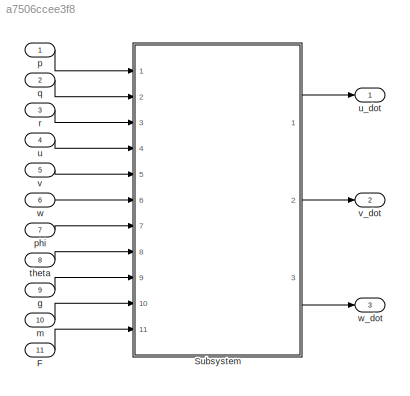
MODEL slx_a7506ccee3f8
KIND model
CONFIG AbsTol = auto
CONFIG EnableMultiTasking = off
CONFIG FixedStep = auto
CONFIG MaxStep = auto
CONFIG MinStep = auto
CONFIG RelTol = 1e-3
CONFIG SampleTimeConstraint = Unconstrained
CONFIG Solver = VariableStepAuto
CONFIG SolverName = VariableStepAuto
CONFIG StartTime = 0.0
CONFIG StopTime = 10.0
BLOCK [Inport] F
  IconDisplay = Port number
  Port = 11
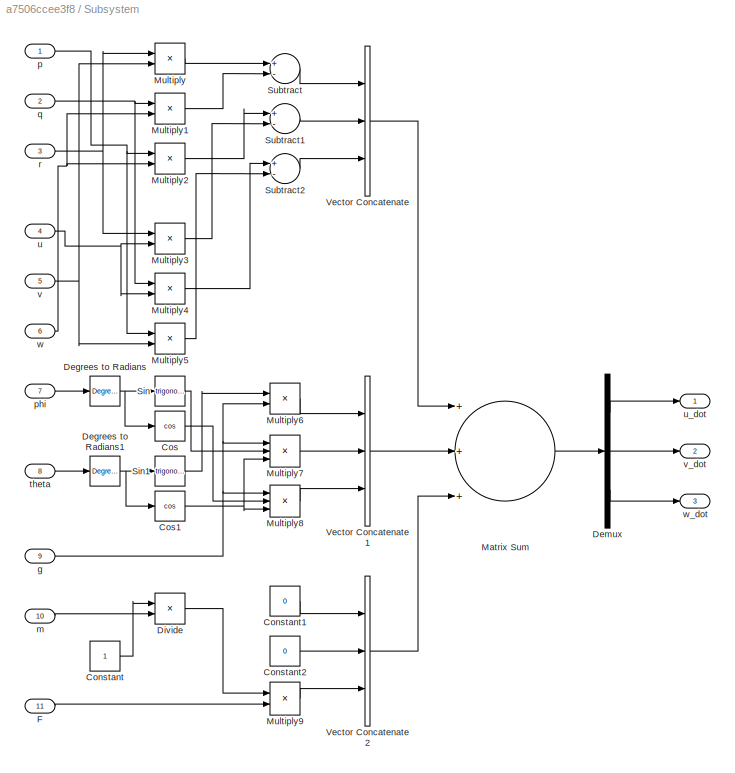
BLOCK [SubSystem] Subsystem
  Ports = [11, 3]
  RequestExecContextInheritance = off
BLOCK [Constant] Subsystem/Constant
BLOCK [Constant] Subsystem/Constant1
  Value = 0
BLOCK [Constant] Subsystem/Constant2
  Value = 0
BLOCK [Trigonometry] Subsystem/Cos
  Operator = cos
  Ports = [1, 1]
BLOCK [Trigonometry] Subsystem/Cos1
  Operator = cos
  Ports = [1, 1]
BLOCK [Reference] Subsystem/Degrees to Radians  REF=simulink_extras/Transformations/Degrees to
Radians
  Ports = [1, 1]
  SourceBlock = simulink_extras/Transformations/Degrees to\nRadians
  SourceProductBaseCode = SL
  SourceProductName = Simulink
  SourceType = DegreesToRadians
BLOCK [Reference] Subsystem/Degrees to Radians1  REF=simulink_extras/Transformations/Degrees to
Radians
  Ports = [1, 1]
  SourceBlock = simulink_extras/Transformations/Degrees to\nRadians
  SourceProductBaseCode = SL
  SourceProductName = Simulink
  SourceType = DegreesToRadians
BLOCK [Demux] Subsystem/Demux
  DisplayOption = bar
  Outputs = 3
  Ports = [1, 3]
BLOCK [Product] Subsystem/Divide
  InputSameDT = off
  Inputs = */
  OutDataTypeStr = Inherit: Inherit via internal rule
  Ports = [2, 1]
  RndMeth = Floor
  SaturateOnIntegerOverflow = off
BLOCK [Inport] Subsystem/F
  IconDisplay = Port number
  Port = 11
BLOCK [Sum] Subsystem/Matrix Sum
  InputSameDT = off
  Inputs = +++
  OutDataTypeStr = Inherit: Inherit via internal rule
  Ports = [3, 1]
  SaturateOnIntegerOverflow = off
BLOCK [Product] Subsystem/Multiply
  InputSameDT = off
  OutDataTypeStr = Inherit: Inherit via internal rule
  Ports = [2, 1]
  RndMeth = Floor
  SaturateOnIntegerOverflow = off
BLOCK [Product] Subsystem/Multiply1
  InputSameDT = off
  OutDataTypeStr = Inherit: Inherit via internal rule
  Ports = [2, 1]
  RndMeth = Floor
  SaturateOnIntegerOverflow = off
BLOCK [Product] Subsystem/Multiply2
  InputSameDT = off
  OutDataTypeStr = Inherit: Inherit via internal rule
  Ports = [2, 1]
  RndMeth = Floor
  SaturateOnIntegerOverflow = off
BLOCK [Product] Subsystem/Multiply3
  InputSameDT = off
  OutDataTypeStr = Inherit: Inherit via internal rule
  Ports = [2, 1]
  RndMeth = Floor
  SaturateOnIntegerOverflow = off
BLOCK [Product] Subsystem/Multiply4
  InputSameDT = off
  OutDataTypeStr = Inherit: Inherit via internal rule
  Ports = [2, 1]
  RndMeth = Floor
  SaturateOnIntegerOverflow = off
BLOCK [Product] Subsystem/Multiply5
  InputSameDT = off
  OutDataTypeStr = Inherit: Inherit via internal rule
  Ports = [2, 1]
  RndMeth = Floor
  SaturateOnIntegerOverflow = off
BLOCK [Product] Subsystem/Multiply6
  InputSameDT = off
  OutDataTypeStr = Inherit: Inherit via internal rule
  Ports = [2, 1]
  RndMeth = Floor
  SaturateOnIntegerOverflow = off
BLOCK [Product] Subsystem/Multiply7
  InputSameDT = off
  Inputs = 3
  OutDataTypeStr = Inherit: Inherit via internal rule
  Ports = [3, 1]
  RndMeth = Floor
  SaturateOnIntegerOverflow = off
BLOCK [Product] Subsystem/Multiply8
  InputSameDT = off
  Inputs = 3
  OutDataTypeStr = Inherit: Inherit via internal rule
  Ports = [3, 1]
  RndMeth = Floor
  SaturateOnIntegerOverflow = off
BLOCK [Product] Subsystem/Multiply9
  InputSameDT = off
  OutDataTypeStr = Inherit: Inherit via internal rule
  Ports = [2, 1]
  RndMeth = Floor
  SaturateOnIntegerOverflow = off
BLOCK [Trigonometry] Subsystem/Sin
  Ports = [1, 1]
BLOCK [Trigonometry] Subsystem/Sin1
  Ports = [1, 1]
BLOCK [Sum] Subsystem/Subtract
  InputSameDT = off
  Inputs = +-
  OutDataTypeStr = Inherit: Inherit via internal rule
  Ports = [2, 1]
  SaturateOnIntegerOverflow = off
BLOCK [Sum] Subsystem/Subtract1
  InputSameDT = off
  Inputs = +-
  OutDataTypeStr = Inherit: Inherit via internal rule
  Ports = [2, 1]
  SaturateOnIntegerOverflow = off
BLOCK [Sum] Subsystem/Subtract2
  InputSameDT = off
  Inputs = +-
  OutDataTypeStr = Inherit: Inherit via internal rule
  Ports = [2, 1]
  SaturateOnIntegerOverflow = off
BLOCK [Concatenate] Subsystem/Vector Concatenate
  NumInputs = 3
  Ports = [3, 1]
BLOCK [Concatenate] Subsystem/Vector Concatenate1
  NumInputs = 3
  Ports = [3, 1]
BLOCK [Concatenate] Subsystem/Vector Concatenate2
  NumInputs = 3
  Ports = [3, 1]
BLOCK [Inport] Subsystem/g
  IconDisplay = Port number
  Port = 9
BLOCK [Inport] Subsystem/m
  IconDisplay = Port number
  Port = 10
BLOCK [Inport] Subsystem/p
  IconDisplay = Port number
BLOCK [Inport] Subsystem/phi
  IconDisplay = Port number
  Port = 7
BLOCK [Inport] Subsystem/q
  IconDisplay = Port number
  Port = 2
BLOCK [Inport] Subsystem/r
  IconDisplay = Port number
  Port = 3
BLOCK [Inport] Subsystem/theta
  IconDisplay = Port number
  Port = 8
BLOCK [Inport] Subsystem/u
  IconDisplay = Port number
  Port = 4
BLOCK [Outport] Subsystem/u_dot
  IconDisplay = Port number
BLOCK [Inport] Subsystem/v
  IconDisplay = Port number
  Port = 5
BLOCK [Outport] Subsystem/v_dot
  IconDisplay = Port number
  Port = 2
BLOCK [Inport] Subsystem/w
  IconDisplay = Port number
  Port = 6
BLOCK [Outport] Subsystem/w_dot
  IconDisplay = Port number
  Port = 3
BLOCK [Inport] g
  IconDisplay = Port number
  Port = 9
BLOCK [Inport] m
  IconDisplay = Port number
  Port = 10
BLOCK [Inport] p
  IconDisplay = Port number
BLOCK [Inport] phi
  IconDisplay = Port number
  Port = 7
BLOCK [Inport] q
  IconDisplay = Port number
  Port = 2
BLOCK [Inport] r
  IconDisplay = Port number
  Port = 3
BLOCK [Inport] theta
  IconDisplay = Port number
  Port = 8
BLOCK [Inport] u
  IconDisplay = Port number
  Port = 4
BLOCK [Outport] u_dot
  IconDisplay = Port number
BLOCK [Inport] v
  IconDisplay = Port number
  Port = 5
BLOCK [Outport] v_dot
  IconDisplay = Port number
  Port = 2
BLOCK [Inport] w
  IconDisplay = Port number
  Port = 6
BLOCK [Outport] w_dot
  IconDisplay = Port number
  Port = 3
LINE F:1 -> Subsystem:11
LINE Subsystem/Constant1:1 -> Subsystem/Vector Concatenate2:1
LINE Subsystem/Constant2:1 -> Subsystem/Vector Concatenate2:2
LINE Subsystem/Constant:1 -> Subsystem/Divide:1
NET Subsystem/Cos1:1 -> Subsystem/Multiply7:3, Subsystem/Multiply8:3
LINE Subsystem/Cos:1 -> Subsystem/Multiply8:2
NET Subsystem/Degrees to Radians1:1 -> Subsystem/Cos1:1, Subsystem/Sin1:1
NET Subsystem/Degrees to Radians:1 -> Subsystem/Cos:1, Subsystem/Sin:1
LINE Subsystem/Demux:1 -> Subsystem/u_dot:1
LINE Subsystem/Demux:2 -> Subsystem/v_dot:1
LINE Subsystem/Demux:3 -> Subsystem/w_dot:1
LINE Subsystem/Divide:1 -> Subsystem/Multiply9:1
LINE Subsystem/F:1 -> Subsystem/Multiply9:2
LINE Subsystem/Matrix Sum:1 -> Subsystem/Demux:1
LINE Subsystem/Multiply1:1 -> Subsystem/Subtract:2
LINE Subsystem/Multiply2:1 -> Subsystem/Subtract1:1
LINE Subsystem/Multiply3:1 -> Subsystem/Subtract1:2
LINE Subsystem/Multiply4:1 -> Subsystem/Subtract2:1
LINE Subsystem/Multiply5:1 -> Subsystem/Subtract2:2
LINE Subsystem/Multiply6:1 -> Subsystem/Vector Concatenate1:1
LINE Subsystem/Multiply7:1 -> Subsystem/Vector Concatenate1:2
LINE Subsystem/Multiply8:1 -> Subsystem/Vector Concatenate1:3
LINE Subsystem/Multiply9:1 -> Subsystem/Vector Concatenate2:3
LINE Subsystem/Multiply:1 -> Subsystem/Subtract:1
LINE Subsystem/Sin1:1 -> Subsystem/Multiply6:1
LINE Subsystem/Sin:1 -> Subsystem/Multiply7:2
LINE Subsystem/Subtract1:1 -> Subsystem/Vector Concatenate:2
LINE Subsystem/Subtract2:1 -> Subsystem/Vector Concatenate:3
LINE Subsystem/Subtract:1 -> Subsystem/Vector Concatenate:1
LINE Subsystem/Vector Concatenate1:1 -> Subsystem/Matrix Sum:2
LINE Subsystem/Vector Concatenate2:1 -> Subsystem/Matrix Sum:3
LINE Subsystem/Vector Concatenate:1 -> Subsystem/Matrix Sum:1
NET Subsystem/g:1 -> Subsystem/Multiply6:2, Subsystem/Multiply7:1, Subsystem/Multiply8:1
LINE Subsystem/m:1 -> Subsystem/Divide:2
NET Subsystem/p:1 -> Subsystem/Multiply2:1, Subsystem/Multiply5:1
LINE Subsystem/phi:1 -> Subsystem/Degrees to Radians:1
NET Subsystem/q:1 -> Subsystem/Multiply1:1, Subsystem/Multiply4:1
NET Subsystem/r:1 -> Subsystem/Multiply3:1, Subsystem/Multiply:1
LINE Subsystem/theta:1 -> Subsystem/Degrees to Radians1:1
NET Subsystem/u:1 -> Subsystem/Multiply3:2, Subsystem/Multiply4:2
NET Subsystem/v:1 -> Subsystem/Multiply5:2, Subsystem/Multiply:2
NET Subsystem/w:1 -> Subsystem/Multiply1:2, Subsystem/Multiply2:2
LINE Subsystem:1 -> u_dot:1
LINE Subsystem:2 -> v_dot:1
LINE Subsystem:3 -> w_dot:1
LINE g:1 -> Subsystem:9
LINE m:1 -> Subsystem:10
LINE p:1 -> Subsystem:1
LINE phi:1 -> Subsystem:7
LINE q:1 -> Subsystem:2
LINE r:1 -> Subsystem:3
LINE theta:1 -> Subsystem:8
LINE u:1 -> Subsystem:4
LINE v:1 -> Subsystem:5
LINE w:1 -> Subsystem:6
note: NET lines group one-source signal fan-out (src -> all destinations, sorted); 1:1 wires keep LINE
